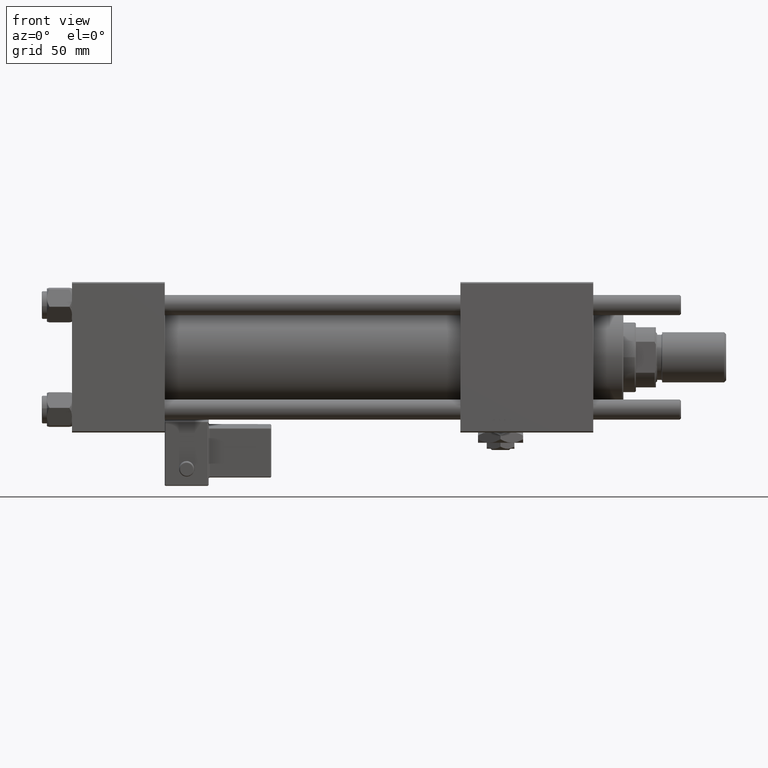
[diagram: clean part render]
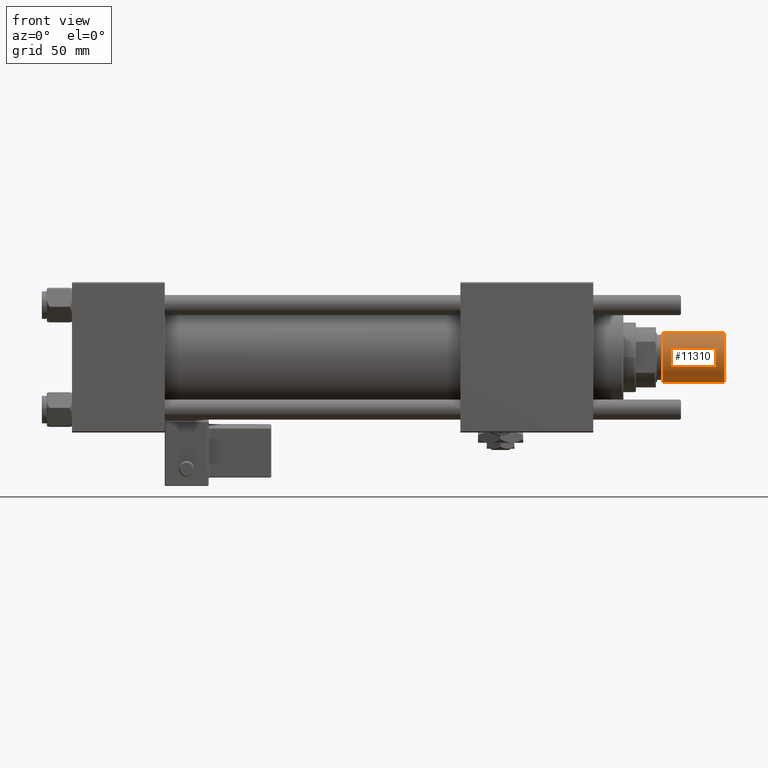
[diagram: same view with one face highlighted and labeled with its STEP entity id]
A machine part, front view. The second image highlights one B-rep face of the part: STEP entity #11310.
In plain terms, the highlighted cylindrical surface (edge-blend (fillet) strip) has radius 10 mm, axis along (1, -0, -0).
Its self-contained STEP definition (entity closure, byte-faithful):
#3926 = CARTESIAN_POINT ( 'NONE',  ( 0.000000000000000000, 0.000000000000000000, 25.50000000000000000 ) ) ;
#5075 = EDGE_CURVE ( 'NONE', #33750, #21351, #52069, .T. ) ;
#10095 = EDGE_CURVE ( 'NONE', #48139, #33750, #56934, .T. ) ;
#10291 = ORIENTED_EDGE ( 'NONE', *, *, #10095, .T. ) ;
#11257 = DIRECTION ( 'NONE',  ( -0.000000000000000000, -0.000000000000000000, 1.000000000000000000 ) ) ;
#11310 = ADVANCED_FACE ( 'NONE', ( #60997 ), #46725, .T. ) ;
#11621 = ORIENTED_EDGE ( 'NONE', *, *, #5075, .T. ) ;
#13565 = DIRECTION ( 'NONE',  ( -0.000000000000000000, -0.000000000000000000, -1.000000000000000000 ) ) ;
#14633 = ORIENTED_EDGE ( 'NONE', *, *, #55706, .F. ) ;
#16887 = CIRCLE ( 'NONE', #44579, 10.00000000000000000 ) ;
#17088 = DIRECTION ( 'NONE',  ( 1.000000000000000000, 0.000000000000000000, 0.000000000000000000 ) ) ;
#18926 = CARTESIAN_POINT ( 'NONE',  ( 10.00000000000000000, 1.224646799147353256E-15, 25.50000000000000000 ) ) ;
#20165 = VECTOR ( 'NONE', #41917, 1000.000000000000000 ) ;
#21351 = VERTEX_POINT ( 'NONE', #51774 ) ;
#21890 = EDGE_LOOP ( 'NONE', ( #28629, #14633, #10291, #11621 ) ) ;
#24055 = CARTESIAN_POINT ( 'NONE',  ( -10.00000000000000000, 0.000000000000000000, 25.50000000000000000 ) ) ;
#25202 = DIRECTION ( 'NONE',  ( 1.000000000000000000, 0.000000000000000000, 0.000000000000000000 ) ) ;
#28629 = ORIENTED_EDGE ( 'NONE', *, *, #34002, .F. ) ;
#33035 = DIRECTION ( 'NONE',  ( -0.000000000000000000, -0.000000000000000000, -1.000000000000000000 ) ) ;
#33750 = VERTEX_POINT ( 'NONE', #37038 ) ;
#34002 = EDGE_CURVE ( 'NONE', #41611, #21351, #51567, .T. ) ;
#37038 = CARTESIAN_POINT ( 'NONE',  ( -10.00000000000000000, 0.000000000000000000, 0.8000000000000055955 ) ) ;
#37792 = CARTESIAN_POINT ( 'NONE',  ( -10.00000000000000000, 0.000000000000000000, 25.50000000000000000 ) ) ;
#38263 = AXIS2_PLACEMENT_3D ( 'NONE', #3926, #13565, #42342 ) ;
#40623 = CARTESIAN_POINT ( 'NONE',  ( 0.000000000000000000, 0.000000000000000000, 25.50000000000000000 ) ) ;
#41611 = VERTEX_POINT ( 'NONE', #18926 ) ;
#41917 = DIRECTION ( 'NONE',  ( -0.000000000000000000, -0.000000000000000000, -1.000000000000000000 ) ) ;
#42118 = AXIS2_PLACEMENT_3D ( 'NONE', #43475, #11257, #25202 ) ;
#42342 = DIRECTION ( 'NONE',  ( -1.000000000000000000, 0.000000000000000000, 0.000000000000000000 ) ) ;
#43475 = CARTESIAN_POINT ( 'NONE',  ( 0.000000000000000000, 0.000000000000000000, 0.8000000000000055955 ) ) ;
#44579 = AXIS2_PLACEMENT_3D ( 'NONE', #40623, #59592, #17088 ) ;
#46725 = CYLINDRICAL_SURFACE ( 'NONE', #38263, 10.00000000000000000 ) ;
#48139 = VERTEX_POINT ( 'NONE', #37792 ) ;
#51258 = CARTESIAN_POINT ( 'NONE',  ( 10.00000000000000000, 1.224646799147353256E-15, 25.50000000000000000 ) ) ;
#51567 = LINE ( 'NONE', #51258, #20165 ) ;
#51774 = CARTESIAN_POINT ( 'NONE',  ( 10.00000000000000000, 1.224646799147353256E-15, 0.8000000000000055955 ) ) ;
#52069 = CIRCLE ( 'NONE', #42118, 10.00000000000000000 ) ;
#55706 = EDGE_CURVE ( 'NONE', #48139, #41611, #16887, .T. ) ;
#56934 = LINE ( 'NONE', #24055, #57082 ) ;
#57082 = VECTOR ( 'NONE', #33035, 1000.000000000000000 ) ;
#59592 = DIRECTION ( 'NONE',  ( 0.000000000000000000, 0.000000000000000000, 1.000000000000000000 ) ) ;
#60997 = FACE_OUTER_BOUND ( 'NONE', #21890, .T. ) ;